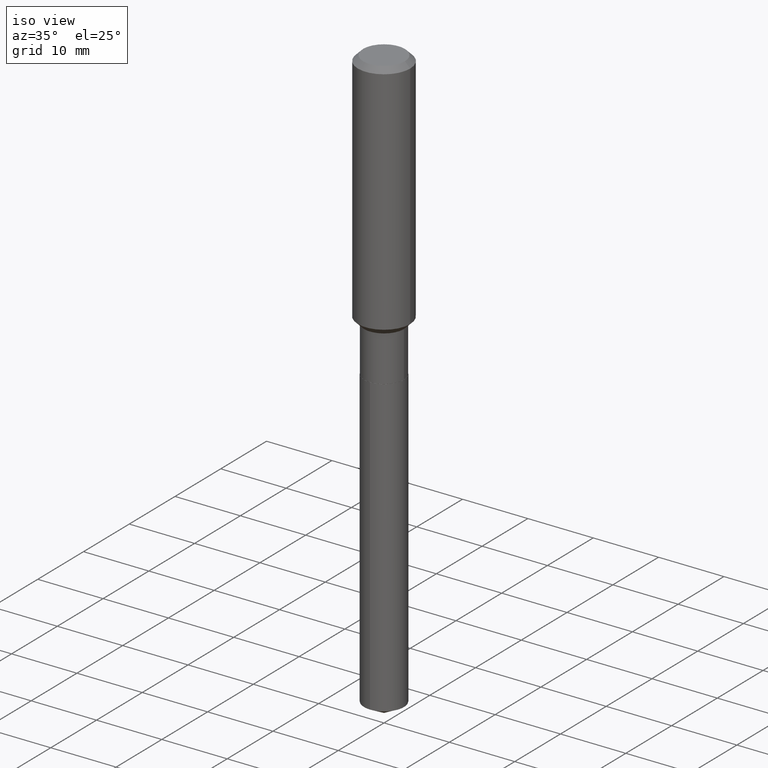
[diagram: clean part render]
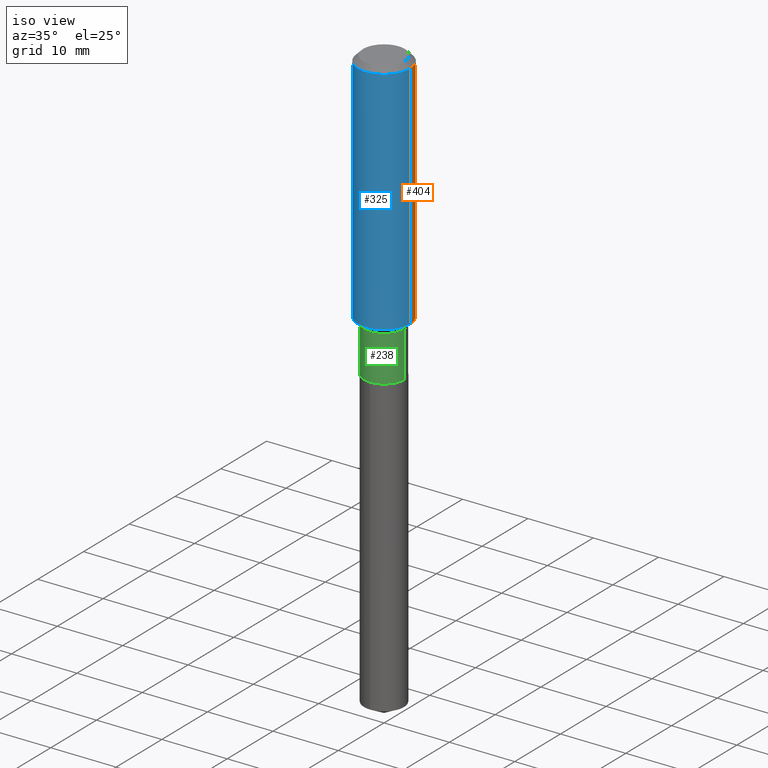
[diagram: same view with three faces highlighted in distinct colors, each labeled with its STEP entity id]
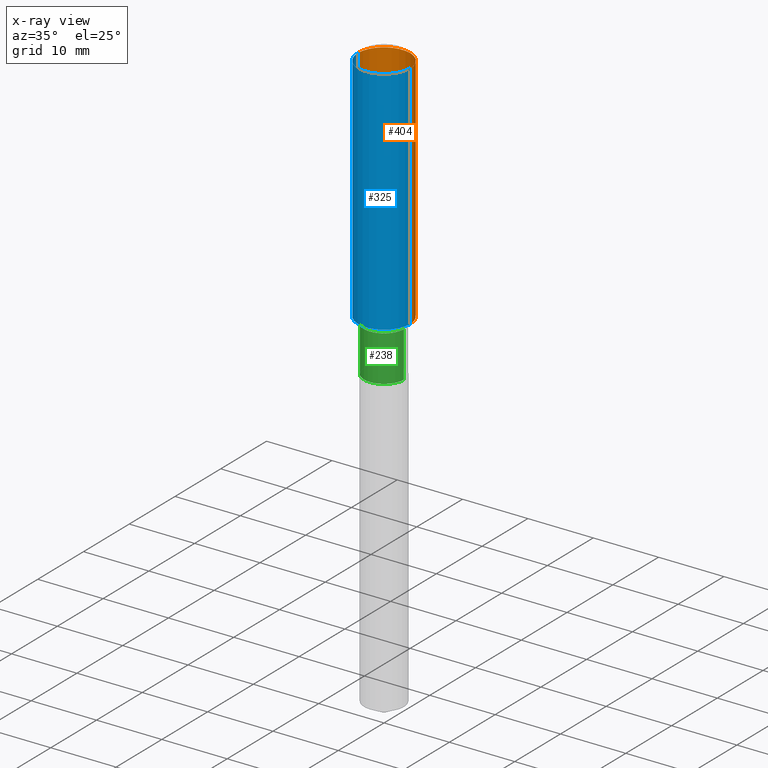
[diagram: x-ray of the same camera — body ghosted, the three highlighted faces saturated]
A machine part, iso view with three faces highlighted in distinct colors.
The next image is the same camera in x-ray (body ghosted, the three faces saturated) — at least one of them is partly hidden behind the body in this view.
Their STEP definitions:

[orange] entity #404 — the highlighted cylindrical surface (edge-blend (fillet) strip) has radius 4.0005 mm, axis along (-0, 0, 1).
#6 = DIRECTION ( 'NONE',  ( -2.445468806185136597E-29, 3.491481338843145583E-15, 1.000000000000000000 ) ) ;
#19 = VERTEX_POINT ( 'NONE', #436 ) ;
#31 = EDGE_CURVE ( 'NONE', #88, #189, #62, .T. ) ;
#53 = CARTESIAN_POINT ( 'NONE',  ( 7.703226739483226971E-31, -1.099816621735597538E-16, -0.03150000000000019451 ) ) ;
#62 = CIRCLE ( 'NONE', #221, 0.1575000000000000011 ) ;
#64 = VERTEX_POINT ( 'NONE', #83 ) ;
#67 = LINE ( 'NONE', #342, #466 ) ;
#72 = CIRCLE ( 'NONE', #484, 0.1575000000000001676 ) ;
#82 = CYLINDRICAL_SURFACE ( 'NONE', #365, 0.1575000000000000844 ) ;
#83 = CARTESIAN_POINT ( 'NONE',  ( 0.1575000000000001676, -6.067147122507732528E-15, -1.422700000000000076 ) ) ;
#88 = VERTEX_POINT ( 'NONE', #329 ) ;
#99 = ORIENTED_EDGE ( 'NONE', *, *, #178, .F. ) ;
#101 = DIRECTION ( 'NONE',  ( -2.445468806185136877E-29, 3.491481338843145188E-15, 1.000000000000000000 ) ) ;
#110 = DIRECTION ( 'NONE',  ( 1.000000000000000000, -6.982962677686267499E-15, 0.000000000000000000 ) ) ;
#114 = VECTOR ( 'NONE', #127, 39.37007874015748143 ) ;
#127 = DIRECTION ( 'NONE',  ( -2.445468806185136877E-29, 3.491481338843145188E-15, 1.000000000000000000 ) ) ;
#151 = DIRECTION ( 'NONE',  ( 1.000000000000000000, -6.982962677686267499E-15, 4.876176775795936353E-29 ) ) ;
#172 = DIRECTION ( 'NONE',  ( -2.445468806185136597E-29, 3.491481338843145583E-15, 1.000000000000000000 ) ) ;
#178 = EDGE_CURVE ( 'NONE', #64, #88, #392, .T. ) ;
#182 = EDGE_LOOP ( 'NONE', ( #490, #382, #311, #99 ) ) ;
#189 = VERTEX_POINT ( 'NONE', #305 ) ;
#221 = AXIS2_PLACEMENT_3D ( 'NONE', #53, #172, #320 ) ;
#262 = EDGE_CURVE ( 'NONE', #19, #189, #67, .T. ) ;
#290 = EDGE_CURVE ( 'NONE', #64, #19, #72, .T. ) ;
#305 = CARTESIAN_POINT ( 'NONE',  ( -0.1575000000000000011, -1.419551272650692874E-15, -0.03150000000000019451 ) ) ;
#311 = ORIENTED_EDGE ( 'NONE', *, *, #31, .F. ) ;
#320 = DIRECTION ( 'NONE',  ( 1.000000000000000000, -6.982962677686265922E-15, 0.000000000000000000 ) ) ;
#329 = CARTESIAN_POINT ( 'NONE',  ( 0.1575000000000000011, -1.209798283909146741E-15, -0.03150000000000019451 ) ) ;
#342 = CARTESIAN_POINT ( 'NONE',  ( -0.1575000000000000844, 1.119104808822158392E-15, -7.747322767151481189E-30 ) ) ;
#358 = CARTESIAN_POINT ( 'NONE',  ( 0.1575000000000000844, -1.099816621735587677E-15, 7.679978421878603638E-30 ) ) ;
#365 = AXIS2_PLACEMENT_3D ( 'NONE', #424, #6, #151 ) ;
#376 = DIRECTION ( 'NONE',  ( -2.445468806185136597E-29, 3.491481338843145583E-15, 1.000000000000000000 ) ) ;
#381 = CARTESIAN_POINT ( 'NONE',  ( 3.479168470559594109E-29, -4.967330500772143470E-15, -1.422700000000000076 ) ) ;
#382 = ORIENTED_EDGE ( 'NONE', *, *, #262, .T. ) ;
#392 = LINE ( 'NONE', #358, #114 ) ;
#404 = ADVANCED_FACE ( 'NONE', ( #428 ), #82, .T. ) ;
#424 = CARTESIAN_POINT ( 'NONE',  ( 0.000000000000000000, 0.000000000000000000, 0.000000000000000000 ) ) ;
#428 = FACE_OUTER_BOUND ( 'NONE', #182, .T. ) ;
#436 = CARTESIAN_POINT ( 'NONE',  ( -0.1575000000000001676, -3.848225691949985078E-15, -1.422700000000000076 ) ) ;
#466 = VECTOR ( 'NONE', #101, 39.37007874015748143 ) ;
#484 = AXIS2_PLACEMENT_3D ( 'NONE', #381, #376, #110 ) ;
#490 = ORIENTED_EDGE ( 'NONE', *, *, #290, .T. ) ;

[blue] entity #325 — the highlighted cylindrical surface (edge-blend (fillet) strip) has radius 4.0005 mm, axis along (-0, 0, 1).
#11 = DIRECTION ( 'NONE',  ( -2.445468806185136597E-29, 3.491481338843145583E-15, 1.000000000000000000 ) ) ;
#19 = VERTEX_POINT ( 'NONE', #436 ) ;
#36 = FACE_OUTER_BOUND ( 'NONE', #419, .T. ) ;
#46 = ORIENTED_EDGE ( 'NONE', *, *, #178, .T. ) ;
#64 = VERTEX_POINT ( 'NONE', #83 ) ;
#67 = LINE ( 'NONE', #342, #466 ) ;
#83 = CARTESIAN_POINT ( 'NONE',  ( 0.1575000000000001676, -6.067147122507732528E-15, -1.422700000000000076 ) ) ;
#88 = VERTEX_POINT ( 'NONE', #329 ) ;
#101 = DIRECTION ( 'NONE',  ( -2.445468806185136877E-29, 3.491481338843145188E-15, 1.000000000000000000 ) ) ;
#114 = VECTOR ( 'NONE', #127, 39.37007874015748143 ) ;
#122 = CIRCLE ( 'NONE', #187, 0.1575000000000000011 ) ;
#124 = CARTESIAN_POINT ( 'NONE',  ( 0.000000000000000000, 0.000000000000000000, 0.000000000000000000 ) ) ;
#127 = DIRECTION ( 'NONE',  ( -2.445468806185136877E-29, 3.491481338843145188E-15, 1.000000000000000000 ) ) ;
#146 = ORIENTED_EDGE ( 'NONE', *, *, #262, .F. ) ;
#149 = CIRCLE ( 'NONE', #299, 0.1575000000000001676 ) ;
#178 = EDGE_CURVE ( 'NONE', #64, #88, #392, .T. ) ;
#187 = AXIS2_PLACEMENT_3D ( 'NONE', #298, #415, #452 ) ;
#188 = CYLINDRICAL_SURFACE ( 'NONE', #247, 0.1575000000000000844 ) ;
#189 = VERTEX_POINT ( 'NONE', #305 ) ;
#234 = CARTESIAN_POINT ( 'NONE',  ( 3.479168470559594109E-29, -4.967330500772143470E-15, -1.422700000000000076 ) ) ;
#237 = DIRECTION ( 'NONE',  ( -2.445468806185136597E-29, 3.491481338843145583E-15, 1.000000000000000000 ) ) ;
#247 = AXIS2_PLACEMENT_3D ( 'NONE', #124, #237, #469 ) ;
#250 = EDGE_CURVE ( 'NONE', #189, #88, #122, .T. ) ;
#262 = EDGE_CURVE ( 'NONE', #19, #189, #67, .T. ) ;
#298 = CARTESIAN_POINT ( 'NONE',  ( 7.703226739483226971E-31, -1.099816621735597538E-16, -0.03150000000000019451 ) ) ;
#299 = AXIS2_PLACEMENT_3D ( 'NONE', #234, #11, #316 ) ;
#305 = CARTESIAN_POINT ( 'NONE',  ( -0.1575000000000000011, -1.419551272650692874E-15, -0.03150000000000019451 ) ) ;
#316 = DIRECTION ( 'NONE',  ( 1.000000000000000000, -6.982962677686267499E-15, 0.000000000000000000 ) ) ;
#325 = ADVANCED_FACE ( 'NONE', ( #36 ), #188, .T. ) ;
#329 = CARTESIAN_POINT ( 'NONE',  ( 0.1575000000000000011, -1.209798283909146741E-15, -0.03150000000000019451 ) ) ;
#342 = CARTESIAN_POINT ( 'NONE',  ( -0.1575000000000000844, 1.119104808822158392E-15, -7.747322767151481189E-30 ) ) ;
#358 = CARTESIAN_POINT ( 'NONE',  ( 0.1575000000000000844, -1.099816621735587677E-15, 7.679978421878603638E-30 ) ) ;
#374 = ORIENTED_EDGE ( 'NONE', *, *, #420, .T. ) ;
#392 = LINE ( 'NONE', #358, #114 ) ;
#415 = DIRECTION ( 'NONE',  ( -2.445468806185136597E-29, 3.491481338843145583E-15, 1.000000000000000000 ) ) ;
#419 = EDGE_LOOP ( 'NONE', ( #146, #374, #46, #456 ) ) ;
#420 = EDGE_CURVE ( 'NONE', #19, #64, #149, .T. ) ;
#436 = CARTESIAN_POINT ( 'NONE',  ( -0.1575000000000001676, -3.848225691949985078E-15, -1.422700000000000076 ) ) ;
#452 = DIRECTION ( 'NONE',  ( 1.000000000000000000, -6.982962677686265922E-15, 0.000000000000000000 ) ) ;
#456 = ORIENTED_EDGE ( 'NONE', *, *, #250, .F. ) ;
#466 = VECTOR ( 'NONE', #101, 39.37007874015748143 ) ;
#469 = DIRECTION ( 'NONE',  ( 1.000000000000000000, -6.982962677686267499E-15, 4.876176775795936353E-29 ) ) ;

[green] entity #238 — the highlighted cylindrical surface (edge-blend (fillet) strip) has radius 3.0505 mm, axis along (-0, 0, 1).
#1 = CARTESIAN_POINT ( 'NONE',  ( 0.1200999999999999707, -5.936565720434997750E-15, -1.460100000000000176 ) ) ;
#8 = EDGE_CURVE ( 'NONE', #166, #77, #80, .T. ) ;
#20 = CIRCLE ( 'NONE', #439, 0.1200999999999999707 ) ;
#26 = AXIS2_PLACEMENT_3D ( 'NONE', #399, #279, #472 ) ;
#32 = FACE_OUTER_BOUND ( 'NONE', #343, .T. ) ;
#39 = DIRECTION ( 'NONE',  ( -2.445468806185136877E-29, 3.491481338843145188E-15, 1.000000000000000000 ) ) ;
#48 = ORIENTED_EDGE ( 'NONE', *, *, #453, .F. ) ;
#77 = VERTEX_POINT ( 'NONE', #241 ) ;
#80 = CIRCLE ( 'NONE', #26, 0.1200999999999999984 ) ;
#104 = VECTOR ( 'NONE', #39, 39.37007874015748143 ) ;
#115 = ORIENTED_EDGE ( 'NONE', *, *, #368, .F. ) ;
#129 = VECTOR ( 'NONE', #327, 39.37007874015748143 ) ;
#139 = ORIENTED_EDGE ( 'NONE', *, *, #8, .T. ) ;
#166 = VERTEX_POINT ( 'NONE', #470 ) ;
#176 = CARTESIAN_POINT ( 'NONE',  ( -0.1200999999999999845, 8.533618256478802134E-16, -5.907641043396141244E-30 ) ) ;
#190 = CARTESIAN_POINT ( 'NONE',  ( 0.000000000000000000, 0.000000000000000000, 0.000000000000000000 ) ) ;
#192 = DIRECTION ( 'NONE',  ( 1.000000000000000000, -6.982962677686267499E-15, 0.000000000000000000 ) ) ;
#201 = ORIENTED_EDGE ( 'NONE', *, *, #225, .T. ) ;
#225 = EDGE_CURVE ( 'NONE', #77, #231, #418, .T. ) ;
#231 = VERTEX_POINT ( 'NONE', #1 ) ;
#233 = VERTEX_POINT ( 'NONE', #336 ) ;
#238 = ADVANCED_FACE ( 'NONE', ( #32 ), #256, .T. ) ;
#241 = CARTESIAN_POINT ( 'NONE',  ( 0.1200999999999999984, -6.899167125554054261E-15, -1.735800000000000454 ) ) ;
#256 = CYLINDRICAL_SURFACE ( 'NONE', #403, 0.1200999999999999845 ) ;
#279 = DIRECTION ( 'NONE',  ( -2.445468806185136597E-29, 3.491481338843145583E-15, 1.000000000000000000 ) ) ;
#297 = CARTESIAN_POINT ( 'NONE',  ( 0.1200999999999999845, -8.386538175901204884E-16, 5.856288307730918652E-30 ) ) ;
#327 = DIRECTION ( 'NONE',  ( -2.445468806185136877E-29, 3.491481338843145188E-15, 1.000000000000000000 ) ) ;
#336 = CARTESIAN_POINT ( 'NONE',  ( -0.1200999999999999707, -4.725850779756525106E-15, -1.460100000000000176 ) ) ;
#343 = EDGE_LOOP ( 'NONE', ( #48, #139, #201, #115 ) ) ;
#368 = EDGE_CURVE ( 'NONE', #233, #231, #20, .T. ) ;
#389 = CARTESIAN_POINT ( 'NONE',  ( 3.570629003910918059E-29, -5.097911902844877459E-15, -1.460100000000000176 ) ) ;
#399 = CARTESIAN_POINT ( 'NONE',  ( 4.244844753776160881E-29, -6.060513307963933970E-15, -1.735800000000000454 ) ) ;
#403 = AXIS2_PLACEMENT_3D ( 'NONE', #190, #450, #455 ) ;
#418 = LINE ( 'NONE', #297, #104 ) ;
#421 = DIRECTION ( 'NONE',  ( -2.445468806185136597E-29, 3.491481338843145583E-15, 1.000000000000000000 ) ) ;
#438 = LINE ( 'NONE', #176, #129 ) ;
#439 = AXIS2_PLACEMENT_3D ( 'NONE', #389, #421, #192 ) ;
#450 = DIRECTION ( 'NONE',  ( -2.445468806185136597E-29, 3.491481338843145583E-15, 1.000000000000000000 ) ) ;
#453 = EDGE_CURVE ( 'NONE', #166, #233, #438, .T. ) ;
#455 = DIRECTION ( 'NONE',  ( 1.000000000000000000, -6.982962677686266711E-15, 4.876176775795936353E-29 ) ) ;
#470 = CARTESIAN_POINT ( 'NONE',  ( -0.1201000000000000262, -4.725850779756525106E-15, -1.735800000000000454 ) ) ;
#472 = DIRECTION ( 'NONE',  ( 1.000000000000000000, -6.982962677686265922E-15, 0.000000000000000000 ) ) ;